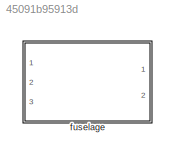
MODEL slx_45091b95913d
KIND library
CONFIG AbsTol = auto
CONFIG EnableMultiTasking = off
CONFIG FixedStep = auto
CONFIG MaxStep = auto
CONFIG MinStep = auto
CONFIG RelTol = 1e-3
CONFIG SampleTimeConstraint = Unconstrained
CONFIG SolverName = VariableStepAuto
CONFIG StartTime = 0.0
CONFIG StopTime = 10.0
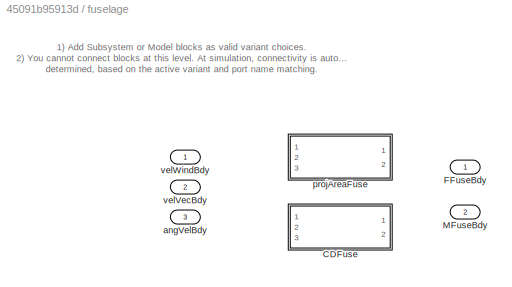
BLOCK [SubSystem] fuselage
  Ports = [3, 2]
  RequestExecContextInheritance = off
  Variant = on
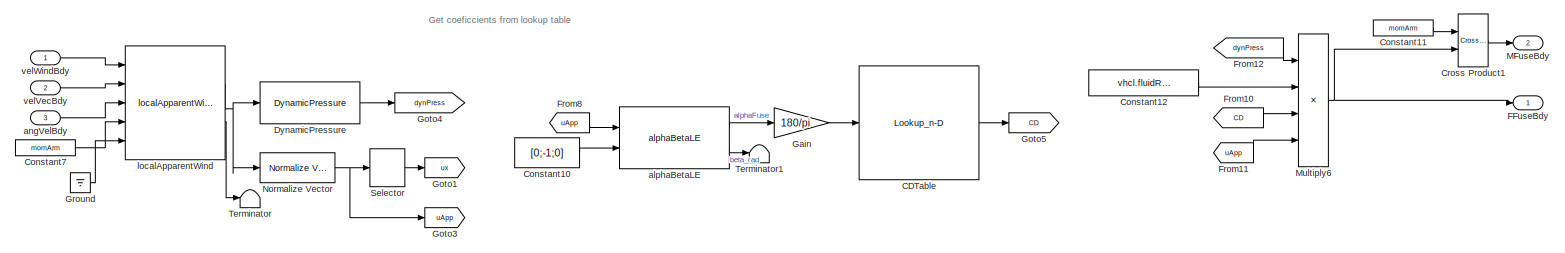
[diagram: fuselage/CDFuse - part 1/1, most of the canvas]
BLOCK [SubSystem] fuselage/CDFuse
  Ports = [3, 2]
  RequestExecContextInheritance = off
  VariantControl = (default)
BLOCK [Lookup_n-D] fuselage/CDFuse/CDTable
  BreakpointsForDimension1 = fus.alpha.Value
  ExtrapMethod = Clip
  InputPortMap = u0
  InternalRulePriority = Speed
  LookupTableObject = CLTable
  NumberOfTableDimensions = 1
  Ports = [1, 1]
  RndMeth = Simplest
  Table = fus.CD.Value
  UseLastTableValue = on
BLOCK [Constant] fuselage/CDFuse/Constant10
  Value = [0;-1;0]
BLOCK [Constant] fuselage/CDFuse/Constant11
  Value = momArm
BLOCK [Constant] fuselage/CDFuse/Constant12
  Value = vhcl.fluidRefArea.Value
BLOCK [Constant] fuselage/CDFuse/Constant7
  Value = momArm
BLOCK [Reference] fuselage/CDFuse/Cross Product1  REF=vrlib/Utilities/Cross Product
  Ports = [2, 1]
  SourceBlock = vrlib/Utilities/Cross Product
  SourceProductBaseCode = SL
  SourceType = Cross Product
BLOCK [Reference] fuselage/CDFuse/DynamicPressure  REF=dynamicPressure_ul/DynamicPressure
  Ports = [1, 1]
  SourceBlock = dynamicPressure_ul/DynamicPressure
BLOCK [Outport] fuselage/CDFuse/FFuseBdy
  VectorParamsAs1DForOutWhenUnconnected = off
BLOCK [From] fuselage/CDFuse/From10
  GotoTag = CD
BLOCK [From] fuselage/CDFuse/From11
  GotoTag = uApp
BLOCK [From] fuselage/CDFuse/From12
  GotoTag = dynPress
BLOCK [From] fuselage/CDFuse/From8
  GotoTag = uApp
BLOCK [Gain] fuselage/CDFuse/Gain
  Gain = 180/pi
BLOCK [Goto] fuselage/CDFuse/Goto1
  GotoTag = ux
BLOCK [Goto] fuselage/CDFuse/Goto3
  GotoTag = uApp
BLOCK [Goto] fuselage/CDFuse/Goto4
  GotoTag = dynPress
BLOCK [Goto] fuselage/CDFuse/Goto5
  GotoTag = CD
BLOCK [Ground] fuselage/CDFuse/Ground
BLOCK [Outport] fuselage/CDFuse/MFuseBdy
  Port = 2
  VectorParamsAs1DForOutWhenUnconnected = off
BLOCK [Product] fuselage/CDFuse/Multiply6
  Inputs = 4
  Ports = [4, 1]
BLOCK [Reference] fuselage/CDFuse/Normalize Vector  REF=vrlib/Utilities/Normalize Vector
  Ports = [1, 1]
  SourceBlock = vrlib/Utilities/Normalize Vector
  SourceProductBaseCode = SL
  SourceType = Normalize Vector
BLOCK [Selector] fuselage/CDFuse/Selector
  IndexOptions = Index vector (dialog)
  Indices = 1
  InputPortWidth = 3
  OutputSizes = 1
  Ports = [1, 1]
BLOCK [Terminator] fuselage/CDFuse/Terminator
BLOCK [Terminator] fuselage/CDFuse/Terminator1
BLOCK [Reference] fuselage/CDFuse/alphaBetaLE  REF=alphaBetaLE_ul/alphaBetaLE
  Ports = [2, 2]
  SourceBlock = alphaBetaLE_ul/alphaBetaLE
  SourceType = SubSystem
BLOCK [Inport] fuselage/CDFuse/angVelBdy
  Port = 3
BLOCK [Reference] fuselage/CDFuse/localApparentWind  REF=localApparentWind_ul/localApparentWind
  Ports = [5, 2]
  SourceBlock = localApparentWind_ul/localApparentWind
  SourceType = SubSystem
BLOCK [Inport] fuselage/CDFuse/velVecBdy
  Port = 2
BLOCK [Inport] fuselage/CDFuse/velWindBdy
BLOCK [Outport] fuselage/FFuseBdy
BLOCK [Outport] fuselage/MFuseBdy
  Port = 2
BLOCK [Inport] fuselage/angVelBdy
  Port = 3
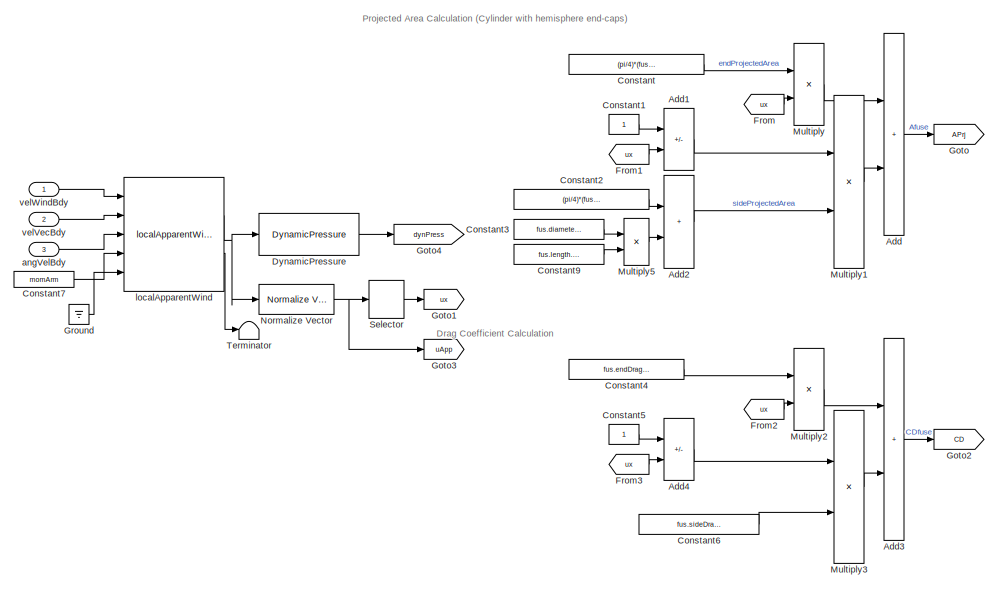
[diagram: fuselage/projAreaFuse - part 1/2, left side, full height]
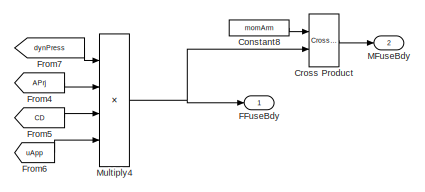
[diagram: fuselage/projAreaFuse - part 2/2, middle right region]
BLOCK [SubSystem] fuselage/projAreaFuse
  Ports = [3, 2]
  RequestExecContextInheritance = off
  VariantControl = isempty(vhcl.fuse.CD.Value)
BLOCK [Sum] fuselage/projAreaFuse/Add
  IconShape = rectangular
  Ports = [2, 1]
BLOCK [Sum] fuselage/projAreaFuse/Add1
  IconShape = rectangular
  Inputs = +-
  Ports = [2, 1]
BLOCK [Sum] fuselage/projAreaFuse/Add2
  IconShape = rectangular
  Ports = [2, 1]
BLOCK [Sum] fuselage/projAreaFuse/Add3
  IconShape = rectangular
  Ports = [2, 1]
BLOCK [Sum] fuselage/projAreaFuse/Add4
  IconShape = rectangular
  Inputs = +-
  Ports = [2, 1]
BLOCK [Constant] fuselage/projAreaFuse/Constant
  Value = (pi/4)*(fus.diameter.Value)^2
BLOCK [Constant] fuselage/projAreaFuse/Constant1
BLOCK [Constant] fuselage/projAreaFuse/Constant2
  Value = (pi/4)*(fus.diameter.Value)^2
BLOCK [Constant] fuselage/projAreaFuse/Constant3
  Value = fus.diameter.Value
BLOCK [Constant] fuselage/projAreaFuse/Constant4
  Value = fus.endDragCoeff.Value
BLOCK [Constant] fuselage/projAreaFuse/Constant5
BLOCK [Constant] fuselage/projAreaFuse/Constant6
  Value = fus.sideDragCoeff.Value
BLOCK [Constant] fuselage/projAreaFuse/Constant7
  Value = momArm
BLOCK [Constant] fuselage/projAreaFuse/Constant8
  Value = momArm
BLOCK [Constant] fuselage/projAreaFuse/Constant9
  Value = fus.length.Value
BLOCK [Reference] fuselage/projAreaFuse/Cross Product  REF=vrlib/Utilities/Cross Product
  Ports = [2, 1]
  SourceBlock = vrlib/Utilities/Cross Product
  SourceProductBaseCode = SL
  SourceType = Cross Product
BLOCK [Reference] fuselage/projAreaFuse/DynamicPressure  REF=dynamicPressure_ul/DynamicPressure
  Ports = [1, 1]
  SourceBlock = dynamicPressure_ul/DynamicPressure
BLOCK [Outport] fuselage/projAreaFuse/FFuseBdy
  VectorParamsAs1DForOutWhenUnconnected = off
BLOCK [From] fuselage/projAreaFuse/From
  GotoTag = ux
BLOCK [From] fuselage/projAreaFuse/From1
  GotoTag = ux
BLOCK [From] fuselage/projAreaFuse/From2
  GotoTag = ux
BLOCK [From] fuselage/projAreaFuse/From3
  GotoTag = ux
BLOCK [From] fuselage/projAreaFuse/From4
  GotoTag = APrj
BLOCK [From] fuselage/projAreaFuse/From5
  GotoTag = CD
BLOCK [From] fuselage/projAreaFuse/From6
  GotoTag = uApp
BLOCK [From] fuselage/projAreaFuse/From7
  GotoTag = dynPress
BLOCK [Goto] fuselage/projAreaFuse/Goto
  GotoTag = APrj
BLOCK [Goto] fuselage/projAreaFuse/Goto1
  GotoTag = ux
BLOCK [Goto] fuselage/projAreaFuse/Goto2
  GotoTag = CD
BLOCK [Goto] fuselage/projAreaFuse/Goto3
  GotoTag = uApp
BLOCK [Goto] fuselage/projAreaFuse/Goto4
  GotoTag = dynPress
BLOCK [Ground] fuselage/projAreaFuse/Ground
BLOCK [Outport] fuselage/projAreaFuse/MFuseBdy
  Port = 2
  VectorParamsAs1DForOutWhenUnconnected = off
BLOCK [Product] fuselage/projAreaFuse/Multiply
  Ports = [2, 1]
BLOCK [Product] fuselage/projAreaFuse/Multiply1
  Ports = [2, 1]
BLOCK [Product] fuselage/projAreaFuse/Multiply2
  Ports = [2, 1]
BLOCK [Product] fuselage/projAreaFuse/Multiply3
  Ports = [2, 1]
BLOCK [Product] fuselage/projAreaFuse/Multiply4
  Inputs = 4
  Ports = [4, 1]
BLOCK [Product] fuselage/projAreaFuse/Multiply5
  Ports = [2, 1]
BLOCK [Reference] fuselage/projAreaFuse/Normalize Vector  REF=vrlib/Utilities/Normalize Vector
  Ports = [1, 1]
  SourceBlock = vrlib/Utilities/Normalize Vector
  SourceProductBaseCode = SL
  SourceType = Normalize Vector
BLOCK [Selector] fuselage/projAreaFuse/Selector
  IndexOptions = Index vector (dialog)
  Indices = 1
  InputPortWidth = 3
  OutputSizes = 1
  Ports = [1, 1]
BLOCK [Terminator] fuselage/projAreaFuse/Terminator
BLOCK [Inport] fuselage/projAreaFuse/angVelBdy
  Port = 3
BLOCK [Reference] fuselage/projAreaFuse/localApparentWind  REF=localApparentWind_ul/localApparentWind
  Ports = [5, 2]
  SourceBlock = localApparentWind_ul/localApparentWind
  SourceType = SubSystem
BLOCK [Inport] fuselage/projAreaFuse/velVecBdy
  Port = 2
BLOCK [Inport] fuselage/projAreaFuse/velWindBdy
BLOCK [Inport] fuselage/velVecBdy
  Port = 2
BLOCK [Inport] fuselage/velWindBdy
ANNOTATION fuselage: 1) Add Subsystem or Model blocks as valid variant choices. 2) You cannot connect blocks at this level. At simulation, connectivity is automatically determined, based on the active variant and port name matching.
ANNOTATION fuselage/CDFuse: Get coeficcients from lookup table
ANNOTATION fuselage/projAreaFuse: Drag Coefficient Calculation
ANNOTATION fuselage/projAreaFuse: Projected Area Calculation (Cylinder with hemisphere end-caps)
LINE fuselage/CDFuse/CDTable:1 -> fuselage/CDFuse/Goto5:1
LINE fuselage/CDFuse/Constant10:1 -> fuselage/CDFuse/alphaBetaLE:2
LINE fuselage/CDFuse/Constant11:1 -> fuselage/CDFuse/Cross Product1:1
LINE fuselage/CDFuse/Constant12:1 -> fuselage/CDFuse/Multiply6:2
LINE fuselage/CDFuse/Constant7:1 -> fuselage/CDFuse/localApparentWind:4
LINE fuselage/CDFuse/Cross Product1:1 -> fuselage/CDFuse/MFuseBdy:1
LINE fuselage/CDFuse/DynamicPressure:1 -> fuselage/CDFuse/Goto4:1
LINE fuselage/CDFuse/From10:1 -> fuselage/CDFuse/Multiply6:3
LINE fuselage/CDFuse/From11:1 -> fuselage/CDFuse/Multiply6:4
LINE fuselage/CDFuse/From12:1 -> fuselage/CDFuse/Multiply6:1
LINE fuselage/CDFuse/From8:1 -> fuselage/CDFuse/alphaBetaLE:1
LINE fuselage/CDFuse/Gain:1 -> fuselage/CDFuse/CDTable:1
LINE fuselage/CDFuse/Ground:1 -> fuselage/CDFuse/localApparentWind:5
NET fuselage/CDFuse/Multiply6:1 -> fuselage/CDFuse/Cross Product1:2, fuselage/CDFuse/FFuseBdy:1
NET fuselage/CDFuse/Normalize Vector:1 -> fuselage/CDFuse/Goto3:1, fuselage/CDFuse/Selector:1
LINE fuselage/CDFuse/Selector:1 -> fuselage/CDFuse/Goto1:1
LINE fuselage/CDFuse/alphaBetaLE:1 -> fuselage/CDFuse/Gain:1
LINE fuselage/CDFuse/alphaBetaLE:2 -> fuselage/CDFuse/Terminator1:1
LINE fuselage/CDFuse/angVelBdy:1 -> fuselage/CDFuse/localApparentWind:3
NET fuselage/CDFuse/localApparentWind:1 -> fuselage/CDFuse/DynamicPressure:1, fuselage/CDFuse/Normalize Vector:1
LINE fuselage/CDFuse/localApparentWind:2 -> fuselage/CDFuse/Terminator:1
LINE fuselage/CDFuse/velVecBdy:1 -> fuselage/CDFuse/localApparentWind:2
LINE fuselage/CDFuse/velWindBdy:1 -> fuselage/CDFuse/localApparentWind:1
LINE fuselage/projAreaFuse/Add1:1 -> fuselage/projAreaFuse/Multiply1:1
LINE fuselage/projAreaFuse/Add2:1 -> fuselage/projAreaFuse/Multiply1:2
LINE fuselage/projAreaFuse/Add3:1 -> fuselage/projAreaFuse/Goto2:1
LINE fuselage/projAreaFuse/Add4:1 -> fuselage/projAreaFuse/Multiply3:1
LINE fuselage/projAreaFuse/Add:1 -> fuselage/projAreaFuse/Goto:1
LINE fuselage/projAreaFuse/Constant1:1 -> fuselage/projAreaFuse/Add1:1
LINE fuselage/projAreaFuse/Constant2:1 -> fuselage/projAreaFuse/Add2:1
LINE fuselage/projAreaFuse/Constant3:1 -> fuselage/projAreaFuse/Multiply5:1
LINE fuselage/projAreaFuse/Constant4:1 -> fuselage/projAreaFuse/Multiply2:1
LINE fuselage/projAreaFuse/Constant5:1 -> fuselage/projAreaFuse/Add4:1
LINE fuselage/projAreaFuse/Constant6:1 -> fuselage/projAreaFuse/Multiply3:2
LINE fuselage/projAreaFuse/Constant7:1 -> fuselage/projAreaFuse/localApparentWind:4
LINE fuselage/projAreaFuse/Constant8:1 -> fuselage/projAreaFuse/Cross Product:1
LINE fuselage/projAreaFuse/Constant9:1 -> fuselage/projAreaFuse/Multiply5:2
LINE fuselage/projAreaFuse/Constant:1 -> fuselage/projAreaFuse/Multiply:1
LINE fuselage/projAreaFuse/Cross Product:1 -> fuselage/projAreaFuse/MFuseBdy:1
LINE fuselage/projAreaFuse/DynamicPressure:1 -> fuselage/projAreaFuse/Goto4:1
LINE fuselage/projAreaFuse/From1:1 -> fuselage/projAreaFuse/Add1:2
LINE fuselage/projAreaFuse/From2:1 -> fuselage/projAreaFuse/Multiply2:2
LINE fuselage/projAreaFuse/From3:1 -> fuselage/projAreaFuse/Add4:2
LINE fuselage/projAreaFuse/From4:1 -> fuselage/projAreaFuse/Multiply4:2
LINE fuselage/projAreaFuse/From5:1 -> fuselage/projAreaFuse/Multiply4:3
LINE fuselage/projAreaFuse/From6:1 -> fuselage/projAreaFuse/Multiply4:4
LINE fuselage/projAreaFuse/From7:1 -> fuselage/projAreaFuse/Multiply4:1
LINE fuselage/projAreaFuse/From:1 -> fuselage/projAreaFuse/Multiply:2
LINE fuselage/projAreaFuse/Ground:1 -> fuselage/projAreaFuse/localApparentWind:5
LINE fuselage/projAreaFuse/Multiply1:1 -> fuselage/projAreaFuse/Add:2
LINE fuselage/projAreaFuse/Multiply2:1 -> fuselage/projAreaFuse/Add3:1
LINE fuselage/projAreaFuse/Multiply3:1 -> fuselage/projAreaFuse/Add3:2
NET fuselage/projAreaFuse/Multiply4:1 -> fuselage/projAreaFuse/Cross Product:2, fuselage/projAreaFuse/FFuseBdy:1
LINE fuselage/projAreaFuse/Multiply5:1 -> fuselage/projAreaFuse/Add2:2
LINE fuselage/projAreaFuse/Multiply:1 -> fuselage/projAreaFuse/Add:1
NET fuselage/projAreaFuse/Normalize Vector:1 -> fuselage/projAreaFuse/Goto3:1, fuselage/projAreaFuse/Selector:1
LINE fuselage/projAreaFuse/Selector:1 -> fuselage/projAreaFuse/Goto1:1
LINE fuselage/projAreaFuse/angVelBdy:1 -> fuselage/projAreaFuse/localApparentWind:3
NET fuselage/projAreaFuse/localApparentWind:1 -> fuselage/projAreaFuse/DynamicPressure:1, fuselage/projAreaFuse/Normalize Vector:1
LINE fuselage/projAreaFuse/localApparentWind:2 -> fuselage/projAreaFuse/Terminator:1
LINE fuselage/projAreaFuse/velVecBdy:1 -> fuselage/projAreaFuse/localApparentWind:2
LINE fuselage/projAreaFuse/velWindBdy:1 -> fuselage/projAreaFuse/localApparentWind:1
note: NET lines group one-source signal fan-out (src -> all destinations, sorted); 1:1 wires keep LINE
